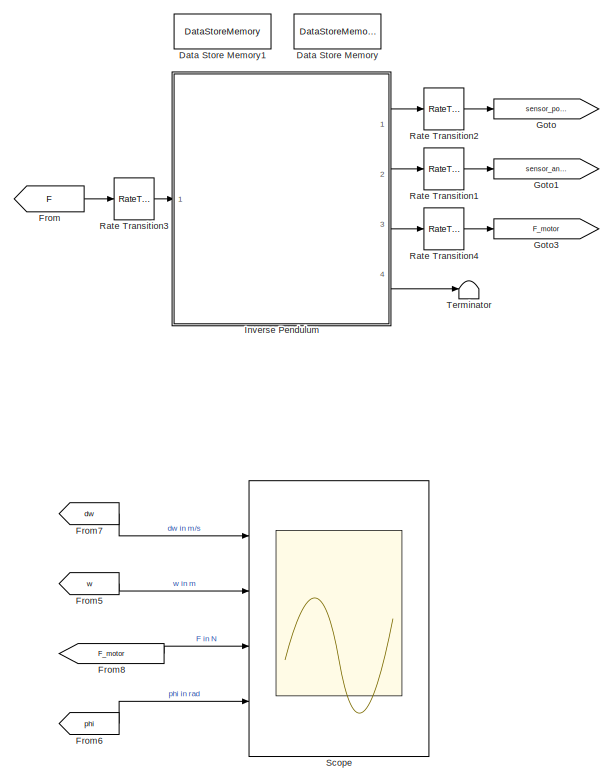
[diagram: root canvas - part 1/2, right side, full height]
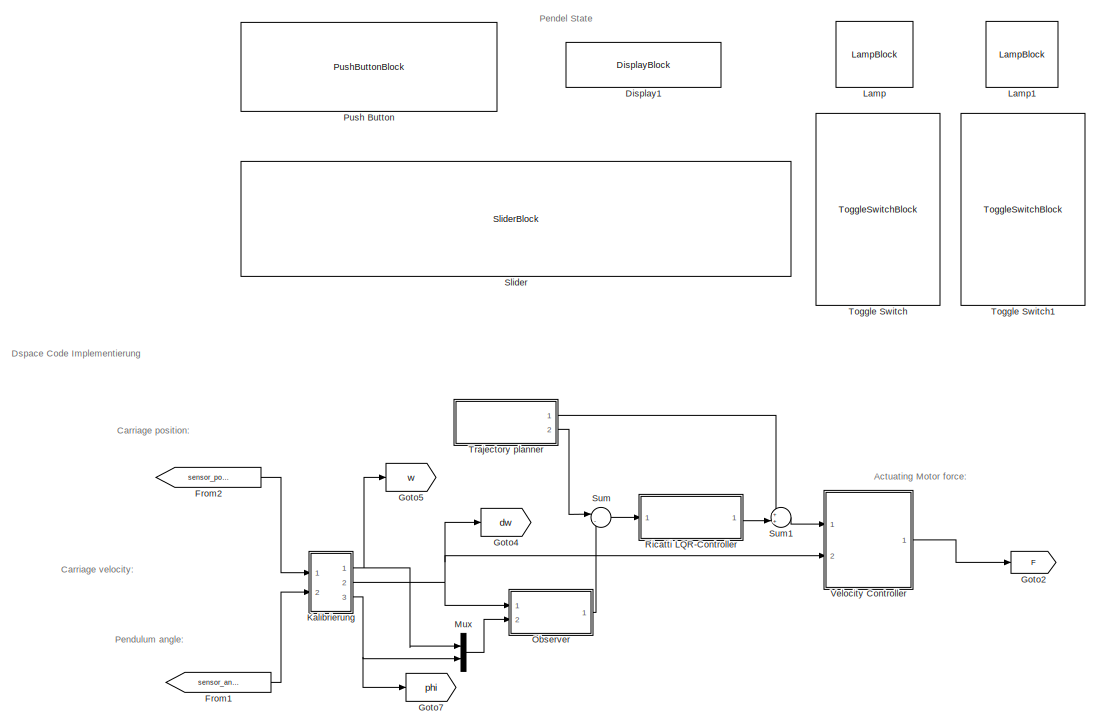
[diagram: root canvas - part 2/2, left side, full height]
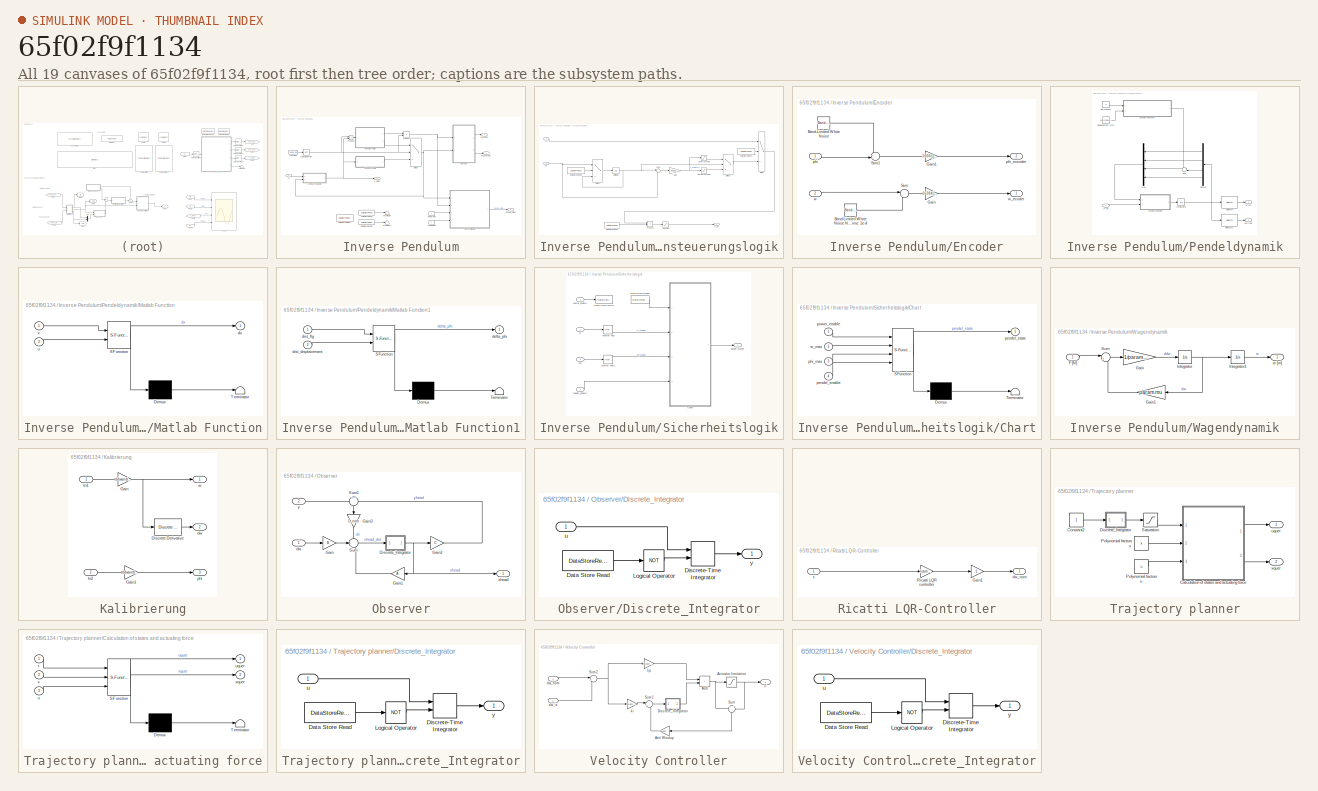
[diagram: thumbnail index - all 19 canvases of the model, root first then tree order]
MODEL slx_65f02f9f1134
KIND model
CONFIG AbsTol = auto
CONFIG EnableMultiTasking = off
CONFIG FixedStep = auto
CONFIG MaxStep = auto
CONFIG MinStep = auto
CONFIG RelTol = 1e-3
CONFIG SampleTimeConstraint = Unconstrained
CONFIG SolverName = VariableStepAuto
CONFIG StartTime = 0.0
CONFIG StopTime = 20
BLOCK [DataStoreMemory] Data Store Memory
  DataStoreName = power_flag
  OutDataTypeStr = boolean
  ReadBeforeWriteMsg = warning
  ShowAdditionalParam = off
  SignalType = real
  WriteAfterReadMsg = warning
  WriteAfterWriteMsg = warning
BLOCK [DataStoreMemory] Data Store Memory1
  DataStoreName = pendel_flag
  OutDataTypeStr = boolean
  ReadBeforeWriteMsg = warning
  ShowAdditionalParam = off
  SignalType = real
  WriteAfterReadMsg = warning
  WriteAfterWriteMsg = warning
BLOCK [DisplayBlock] Display1
  LabelPosition = Hide
BLOCK [From] From
  GotoTag = F
BLOCK [From] From1
  GotoTag = sensor_angle
BLOCK [From] From2
  GotoTag = sensor_position
BLOCK [From] From5
  GotoTag = w
BLOCK [From] From6
  GotoTag = phi
BLOCK [From] From7
  GotoTag = dw
BLOCK [From] From8
  GotoTag = F_motor
BLOCK [Goto] Goto
  GotoTag = sensor_position
BLOCK [Goto] Goto1
  GotoTag = sensor_angle
BLOCK [Goto] Goto2
  GotoTag = F
BLOCK [Goto] Goto3
  GotoTag = F_motor
BLOCK [Goto] Goto4
  GotoTag = dw
BLOCK [Goto] Goto5
  GotoTag = w
BLOCK [Goto] Goto7
  GotoTag = phi
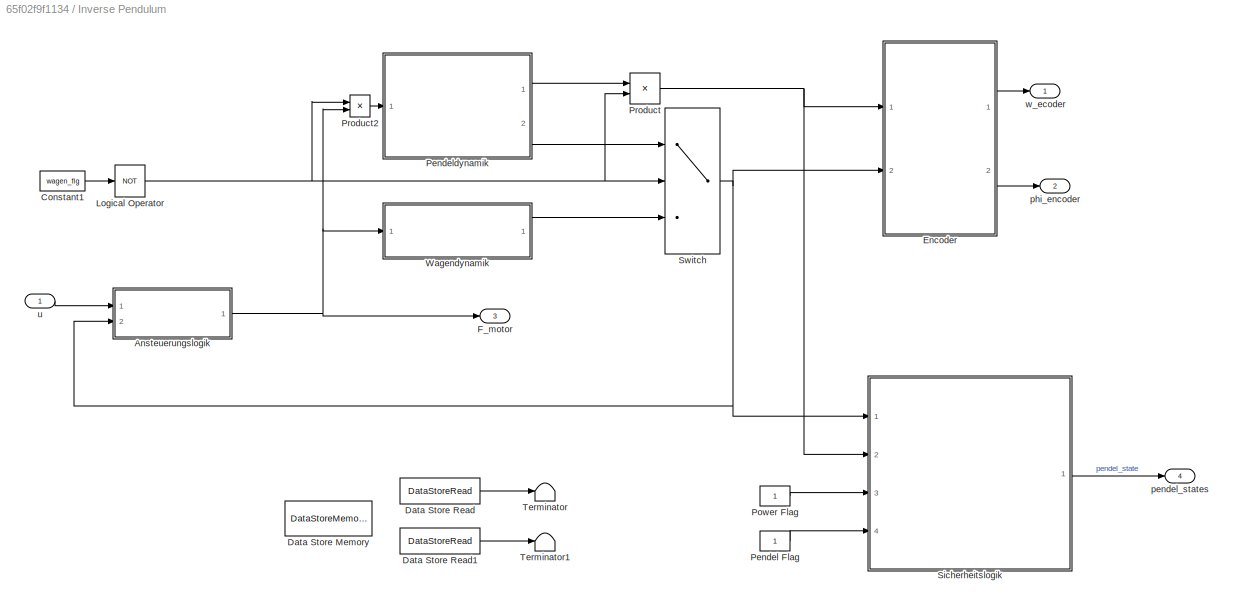
BLOCK [SubSystem] Inverse Pendulum
  Ports = [1, 4]
  RequestExecContextInheritance = off
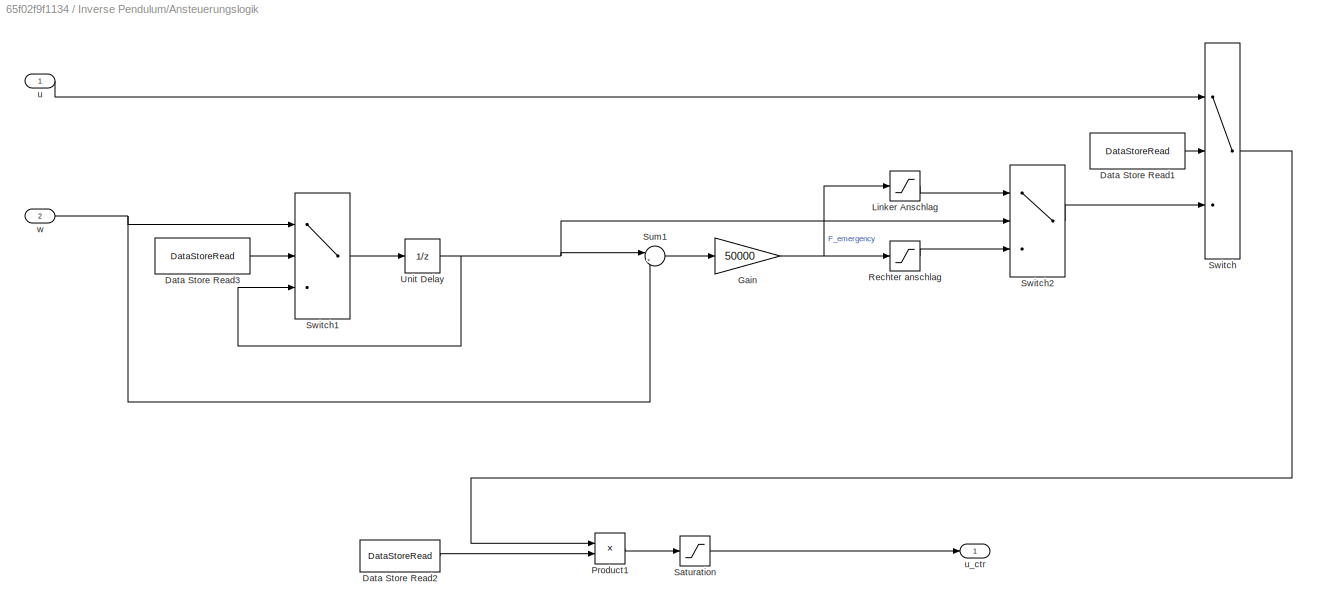
BLOCK [SubSystem] Inverse Pendulum/Ansteuerungslogik
  Ports = [2, 1]
  RequestExecContextInheritance = off
BLOCK [DataStoreRead] Inverse Pendulum/Ansteuerungslogik/Data Store Read1
  DataStoreName = pendel_flag
  Ports = [0, 1]
BLOCK [DataStoreRead] Inverse Pendulum/Ansteuerungslogik/Data Store Read2
  DataStoreName = power_flag
  Ports = [0, 1]
BLOCK [DataStoreRead] Inverse Pendulum/Ansteuerungslogik/Data Store Read3
  DataStoreName = w_update_flag
  Ports = [0, 1]
BLOCK [Gain] Inverse Pendulum/Ansteuerungslogik/Gain
  Gain = 50000
BLOCK [Saturate] Inverse Pendulum/Ansteuerungslogik/Linker Anschlag
  LowerLimit = -inf
  UpperLimit = 10
BLOCK [Product] Inverse Pendulum/Ansteuerungslogik/Product1
  Ports = [2, 1]
BLOCK [Saturate] Inverse Pendulum/Ansteuerungslogik/Rechter anschlag
  LowerLimit = -10
  UpperLimit = inf
BLOCK [Saturate] Inverse Pendulum/Ansteuerungslogik/Saturation
  LowerLimit = -99.83
  UpperLimit = 99.83
BLOCK [Sum] Inverse Pendulum/Ansteuerungslogik/Sum1
  Inputs = |+-
  Ports = [2, 1]
BLOCK [Switch] Inverse Pendulum/Ansteuerungslogik/Switch
  Criteria = u2 > Threshold
  InputSameDT = off
  SaturateOnIntegerOverflow = off
BLOCK [Switch] Inverse Pendulum/Ansteuerungslogik/Switch1
  Criteria = u2 > Threshold
  InputSameDT = off
  SaturateOnIntegerOverflow = off
BLOCK [Switch] Inverse Pendulum/Ansteuerungslogik/Switch2
  Criteria = u2 > Threshold
  InputSameDT = off
  SaturateOnIntegerOverflow = off
BLOCK [UnitDelay] Inverse Pendulum/Ansteuerungslogik/Unit Delay
  HasFrameUpgradeWarning = on
  SampleTime = -1
BLOCK [Inport] Inverse Pendulum/Ansteuerungslogik/u
BLOCK [Outport] Inverse Pendulum/Ansteuerungslogik/u_ctr
  VectorParamsAs1DForOutWhenUnconnected = off
BLOCK [Inport] Inverse Pendulum/Ansteuerungslogik/w
  Port = 2
BLOCK [Constant] Inverse Pendulum/Constant1
  Value = wagen_flg
BLOCK [DataStoreMemory] Inverse Pendulum/Data Store Memory
  DataStoreName = w_update_flag
  OutDataTypeStr = boolean
  ReadBeforeWriteMsg = warning
  ShowAdditionalParam = off
  SignalType = real
  WriteAfterReadMsg = warning
  WriteAfterWriteMsg = warning
BLOCK [DataStoreRead] Inverse Pendulum/Data Store Read
  DataStoreName = power_flag
  Ports = [0, 1]
BLOCK [DataStoreRead] Inverse Pendulum/Data Store Read1
  DataStoreName = pendel_flag
  Ports = [0, 1]
BLOCK [SubSystem] Inverse Pendulum/Encoder
  Ports = [2, 2]
  RequestExecContextInheritance = off
BLOCK [Reference] Inverse Pendulum/Encoder/Band-Limited White Noise  REF=simulink/Sources/Band-Limited
White Noise
  Ports = [0, 1]
  SourceBlock = simulink/Sources/Band-Limited\nWhite Noise
  SourceProductBaseCode = SL
  SourceType = Band-Limited White Noise.
BLOCK [Reference] Inverse Pendulum/Encoder/Band-Limited White Noise Noise Power: 1e-15 -> reuslting in [-1, 1]e-5  deviation Sample Time: 1e-4  REF=simulink/Sources/Band-Limited
White Noise
  Ports = [0, 1]
  SourceBlock = simulink/Sources/Band-Limited\nWhite Noise
  SourceProductBaseCode = SL
  SourceType = Band-Limited White Noise.
BLOCK [Gain] Inverse Pendulum/Encoder/Gain
  Gain = 16384/(0.014325*2*pi)
BLOCK [Gain] Inverse Pendulum/Encoder/Gain1
  Gain = 5000/(2*pi)
BLOCK [Sum] Inverse Pendulum/Encoder/Sum
  Inputs = |++
  Ports = [2, 1]
BLOCK [Sum] Inverse Pendulum/Encoder/Sum1
  Inputs = ++|
  Ports = [2, 1]
BLOCK [Inport] Inverse Pendulum/Encoder/phi
BLOCK [Outport] Inverse Pendulum/Encoder/phi_encoder
  Port = 2
  VectorParamsAs1DForOutWhenUnconnected = off
BLOCK [Inport] Inverse Pendulum/Encoder/w
  Port = 2
BLOCK [Outport] Inverse Pendulum/Encoder/w_ecoder
  VectorParamsAs1DForOutWhenUnconnected = off
BLOCK [Outport] Inverse Pendulum/F_motor
  Port = 3
  VectorParamsAs1DForOutWhenUnconnected = off
BLOCK [Logic] Inverse Pendulum/Logical Operator
  AllPortsSameDT = off
  NameLocation = top
  Operator = NOT
  OutDataTypeStr = boolean
  Ports = [1, 1]
BLOCK [Constant] Inverse Pendulum/Pendel Flag
  OutDataTypeStr = boolean
BLOCK [SubSystem] Inverse Pendulum/Pendeldynamik
  NameLocation = top
  Ports = [1, 2]
  RequestExecContextInheritance = off
BLOCK [Demux] Inverse Pendulum/Pendeldynamik/Demux
  NameLocation = top
  Ports = [1, 4]
BLOCK [Constant] Inverse Pendulum/Pendeldynamik/Displacement [cm]
  Value = 1.89122596153846
BLOCK [Constant] Inverse Pendulum/Pendeldynamik/Disturbance
  OutDataTypeStr = boolean
  Value = 0
BLOCK [Inport] Inverse Pendulum/Pendeldynamik/F [N]
BLOCK [Integrator] Inverse Pendulum/Pendeldynamik/Integrator
  InitialCondition = [0 0 0 0]'
  Ports = [1, 1]
BLOCK [SubSystem] Inverse Pendulum/Pendeldynamik/Matlab Function
  ErrorFcn = Stateflow.Translate.translate
  PermitHierarchicalResolution = ExplicitOnly
  Ports = [2, 1]
  RequestExecContextInheritance = off
  SFBlockType = MATLAB Function
  TreatAsAtomicUnit = on
BLOCK [Demux] Inverse Pendulum/Pendeldynamik/Matlab Function/ Demux 
  Outputs = 1
  Ports = [1, 1]
BLOCK [S-Function] Inverse Pendulum/Pendeldynamik/Matlab Function/ SFunction 
  EnableBusSupport = on
  FunctionName = sf_sfun
  Parameters = param
  PortCounts = [2 2]
  Ports = [2, 2]
  SFcnIsStateOwnerBlock = off
  SFunctionDeploymentMode = off
  Tag = Stateflow S-Function 2
BLOCK [Terminator] Inverse Pendulum/Pendeldynamik/Matlab Function/ Terminator 
BLOCK [Outport] Inverse Pendulum/Pendeldynamik/Matlab Function/dx
  VectorParamsAs1DForOutWhenUnconnected = off
BLOCK [Inport] Inverse Pendulum/Pendeldynamik/Matlab Function/u
  Port = 2
BLOCK [Inport] Inverse Pendulum/Pendeldynamik/Matlab Function/x
BLOCK [SubSystem] Inverse Pendulum/Pendeldynamik/Matlab Function1
  ErrorFcn = Stateflow.Translate.translate
  PermitHierarchicalResolution = ExplicitOnly
  Ports = [2, 1]
  RequestExecContextInheritance = off
  SFBlockType = MATLAB Function
  TreatAsAtomicUnit = on
BLOCK [Demux] Inverse Pendulum/Pendeldynamik/Matlab Function1/ Demux 
  Outputs = 1
  Ports = [1, 1]
BLOCK [S-Function] Inverse Pendulum/Pendeldynamik/Matlab Function1/ SFunction 
  EnableBusSupport = on
  FunctionName = sf_sfun
  Parameters = param
  PortCounts = [2 2]
  Ports = [2, 2]
  SFcnIsStateOwnerBlock = off
  SFunctionDeploymentMode = off
  Tag = Stateflow S-Function 1
BLOCK [Terminator] Inverse Pendulum/Pendeldynamik/Matlab Function1/ Terminator 
BLOCK [Outport] Inverse Pendulum/Pendeldynamik/Matlab Function1/delta_phi
  VectorParamsAs1DForOutWhenUnconnected = off
BLOCK [Inport] Inverse Pendulum/Pendeldynamik/Matlab Function1/dist_displacement
  Port = 2
BLOCK [Inport] Inverse Pendulum/Pendeldynamik/Matlab Function1/dist_flg
BLOCK [Mux] Inverse Pendulum/Pendeldynamik/Mux
  DisplayOption = bar
  NameLocation = top
  Ports = [4, 1]
BLOCK [Selector] Inverse Pendulum/Pendeldynamik/Selector
  IndexOptions = Index vector (dialog)
  Indices = [1]
  InputPortWidth = 4
  OutputSizes = 1
  Ports = [1, 1]
BLOCK [Selector] Inverse Pendulum/Pendeldynamik/Selector1
  IndexOptions = Index vector (dialog)
  Indices = [3]
  InputPortWidth = 4
  OutputSizes = 1
  Ports = [1, 1]
BLOCK [Sum] Inverse Pendulum/Pendeldynamik/Sum
  Inputs = ++|
  NameLocation = top
  Ports = [2, 1]
BLOCK [Outport] Inverse Pendulum/Pendeldynamik/phi [rad]
  VectorParamsAs1DForOutWhenUnconnected = off
BLOCK [Outport] Inverse Pendulum/Pendeldynamik/w [m]
  Port = 2
  VectorParamsAs1DForOutWhenUnconnected = off
BLOCK [Constant] Inverse Pendulum/Power Flag 
  OutDataTypeStr = boolean
BLOCK [Product] Inverse Pendulum/Product
  Ports = [2, 1]
BLOCK [Product] Inverse Pendulum/Product2
  Ports = [2, 1]
BLOCK [SubSystem] Inverse Pendulum/Sicherheitslogik
  Ports = [4, 1]
  RequestExecContextInheritance = off
BLOCK [SubSystem] Inverse Pendulum/Sicherheitslogik/Chart
  ErrorFcn = Stateflow.Translate.translate
  PermitHierarchicalResolution = ExplicitOnly
  Ports = [4, 1]
  RequestExecContextInheritance = off
  SFBlockType = Chart
  TreatAsAtomicUnit = on
BLOCK [Demux] Inverse Pendulum/Sicherheitslogik/Chart/ Demux 
  Outputs = 1
  Ports = [1, 1]
BLOCK [S-Function] Inverse Pendulum/Sicherheitslogik/Chart/ SFunction 
  EnableBusSupport = on
  FunctionName = sf_sfun
  PortCounts = [4 2]
  Ports = [4, 2]
  SFcnIsStateOwnerBlock = off
  SFunctionDeploymentMode = off
  Tag = Stateflow S-Function 3
BLOCK [Terminator] Inverse Pendulum/Sicherheitslogik/Chart/ Terminator 
BLOCK [Inport] Inverse Pendulum/Sicherheitslogik/Chart/pendel_enable
  Port = 4
BLOCK [Outport] Inverse Pendulum/Sicherheitslogik/Chart/pendel_state
  VectorParamsAs1DForOutWhenUnconnected = off
BLOCK [Inport] Inverse Pendulum/Sicherheitslogik/Chart/phi_max
  Port = 3
BLOCK [Inport] Inverse Pendulum/Sicherheitslogik/Chart/power_enable
BLOCK [Inport] Inverse Pendulum/Sicherheitslogik/Chart/w_max
  Port = 2
BLOCK [DataStoreRead] Inverse Pendulum/Sicherheitslogik/Data Store Read1
  DataStoreName = power_flag
  Ports = [0, 1]
BLOCK [DataStoreWrite] Inverse Pendulum/Sicherheitslogik/Data Store Write
  DataStoreName = power_flag
  Ports = [1]
BLOCK [Reference] Inverse Pendulum/Sicherheitslogik/Interval Test  REF=simulink/Logic and Bit
Operations/Interval Test
  Ports = [1, 1]
  SourceBlock = simulink/Logic and Bit\nOperations/Interval Test
  SourceProductBaseCode = SL
  SourceType = Interval Test
BLOCK [Reference] Inverse Pendulum/Sicherheitslogik/Interval Test1  REF=simulink/Logic and Bit
Operations/Interval Test
  Ports = [1, 1]
  SourceBlock = simulink/Logic and Bit\nOperations/Interval Test
  SourceProductBaseCode = SL
  SourceType = Interval Test
BLOCK [Inport] Inverse Pendulum/Sicherheitslogik/pendel_enable
  Port = 4
BLOCK [Outport] Inverse Pendulum/Sicherheitslogik/pendel_states
  VectorParamsAs1DForOutWhenUnconnected = off
BLOCK [Inport] Inverse Pendulum/Sicherheitslogik/phi
  Port = 2
BLOCK [Inport] Inverse Pendulum/Sicherheitslogik/power_enable
  Port = 3
BLOCK [Inport] Inverse Pendulum/Sicherheitslogik/w
BLOCK [Switch] Inverse Pendulum/Switch
  Criteria = u2 > Threshold
  InputSameDT = off
  SaturateOnIntegerOverflow = off
BLOCK [Terminator] Inverse Pendulum/Terminator
BLOCK [Terminator] Inverse Pendulum/Terminator1
BLOCK [SubSystem] Inverse Pendulum/Wagendynamik
  Ports = [1, 1]
  RequestExecContextInheritance = off
BLOCK [Inport] Inverse Pendulum/Wagendynamik/F [N]
BLOCK [Gain] Inverse Pendulum/Wagendynamik/Gain
  Gain = 1/param.mw
BLOCK [Gain] Inverse Pendulum/Wagendynamik/Gain1
  Gain = param.mu
BLOCK [Integrator] Inverse Pendulum/Wagendynamik/Integrator
  Ports = [1, 1]
BLOCK [Integrator] Inverse Pendulum/Wagendynamik/Integrator1
  Ports = [1, 1]
BLOCK [Sum] Inverse Pendulum/Wagendynamik/Sum
  Inputs = |+-
  Ports = [2, 1]
BLOCK [Outport] Inverse Pendulum/Wagendynamik/w [m]
  VectorParamsAs1DForOutWhenUnconnected = off
BLOCK [Outport] Inverse Pendulum/pendel_states
  Port = 4
  VectorParamsAs1DForOutWhenUnconnected = off
BLOCK [Outport] Inverse Pendulum/phi_encoder
  Port = 2
  VectorParamsAs1DForOutWhenUnconnected = off
BLOCK [Inport] Inverse Pendulum/u
  OutDataTypeStr = double
BLOCK [Outport] Inverse Pendulum/w_ecoder
  VectorParamsAs1DForOutWhenUnconnected = off
BLOCK [SubSystem] Kalibrierung
  Ports = [2, 3]
  RequestExecContextInheritance = off
BLOCK [Reference] Kalibrierung/Discrete Derivative  REF=simulink/Discrete/Discrete Derivative
  Ports = [1, 1]
  SourceBlock = simulink/Discrete/Discrete Derivative
  SourceProductBaseCode = SL
  SourceType = Discrete Derivative
BLOCK [Gain] Kalibrierung/Gain
  Gain = ddwandler.w
BLOCK [Gain] Kalibrierung/Gain1
  Gain = ddwandler.phi
BLOCK [Inport] Kalibrierung/In1
BLOCK [Inport] Kalibrierung/In2
  Port = 2
BLOCK [Outport] Kalibrierung/dw
  Port = 2
BLOCK [Outport] Kalibrierung/phi
  Port = 3
BLOCK [Outport] Kalibrierung/w
BLOCK [LampBlock] Lamp
  LabelPosition = Hide
BLOCK [LampBlock] Lamp1
  LabelPosition = Hide
BLOCK [Mux] Mux
  DisplayOption = bar
  Inputs = 2
  Ports = [2, 1]
BLOCK [SubSystem] Observer
  Ports = [2, 1]
  RequestExecContextInheritance = off
BLOCK [SubSystem] Observer/Discrete_Integrator
  Ports = [1, 1]
  RequestExecContextInheritance = off
BLOCK [DataStoreRead] Observer/Discrete_Integrator/Data Store Read
  DataStoreName = power_flag
  Ports = [0, 1]
BLOCK [DiscreteIntegrator] Observer/Discrete_Integrator/Discrete-Time Integrator
  ExternalReset = level
  ICPrevOutput = DiscIntNeverNeededParam
  ICPrevScaledInput = DiscIntNeverNeededParam
  Ports = [2, 1]
  SampleTime = -1
BLOCK [Logic] Observer/Discrete_Integrator/Logical Operator
  AllPortsSameDT = off
  Operator = NOT
  OutDataTypeStr = boolean
  Ports = [1, 1]
BLOCK [Inport] Observer/Discrete_Integrator/u
BLOCK [Outport] Observer/Discrete_Integrator/y
  VectorParamsAs1DForOutWhenUnconnected = off
BLOCK [Gain] Observer/Gain
  Gain = B
  Multiplication = Matrix(K*u)
BLOCK [Gain] Observer/Gain1
  Gain = A
  Multiplication = Matrix(K*u)
  NameLocation = top
BLOCK [Gain] Observer/Gain2
  Gain = C
  Multiplication = Matrix(K*u)
BLOCK [Gain] Observer/Gain3
  Gain = L_nom
  Multiplication = Matrix(K*u)
  NameLocation = left
BLOCK [Sum] Observer/Sum
  Inputs = +++
  Ports = [3, 1]
BLOCK [Sum] Observer/Sum1
  Inputs = +|-
  NameLocation = left
  Ports = [2, 1]
BLOCK [Inport] Observer/dw
BLOCK [Outport] Observer/xhead
BLOCK [Inport] Observer/y
  Port = 2
BLOCK [PushButtonBlock] Push Button
  ButtonText = Disturbe
BLOCK [RateTransition] Rate Transition1
  OutPortSampleTime = ctr.Ts2
BLOCK [RateTransition] Rate Transition2
  OutPortSampleTime = ctr.Ts2
BLOCK [RateTransition] Rate Transition3
BLOCK [RateTransition] Rate Transition4
  OutPortSampleTime = ctr.Ts2
BLOCK [SubSystem] Ricatti LQR-Controller
  Ports = [1, 1]
  RequestExecContextInheritance = off
BLOCK [Gain] Ricatti LQR-Controller/Gain1
  Gain = -1
BLOCK [Gain] Ricatti LQR-Controller/Ricatti LQR controller
  Gain = ricatti_controller
  Multiplication = Matrix(K*u) (u vector)
BLOCK [Outport] Ricatti LQR-Controller/dw_nom
BLOCK [Inport] Ricatti LQR-Controller/x
BLOCK [Scope] Scope
  Floating = off
  NumInputPorts = 4
  Ports = [4]
  ScopeSpecificationString = Simulink.scopes.TimeScopeBlockCfg('CurrentConfiguration', extmgr.ConfigurationSet(extmgr.Configuration('Core','General UI',true),extmgr.Configuration('Core','Source UI',true),extmgr.Configuration('Sources','WiredSimulink',true),extmgr.Configuration('Visuals','Time Domain',true,'SerializedDisplays',{struct('MinYLimReal','-0.31738','MaxYLimReal','0.63901','YLabelReal','','MinYLimMag','0.00000','MaxY...<+3430ch>
BLOCK [SliderBlock] Slider
  ScaleMax = 10
  ScaleMin = -10
BLOCK [Sum] Sum
  Inputs = |-+
  Ports = [2, 1]
BLOCK [Sum] Sum1
  Inputs = ++|
  Ports = [2, 1]
BLOCK [Terminator] Terminator
BLOCK [ToggleSwitchBlock] Toggle Switch
BLOCK [ToggleSwitchBlock] Toggle Switch1
BLOCK [SubSystem] Trajectory planner
  Ports = [0, 2]
  RequestExecContextInheritance = off
BLOCK [SubSystem] Trajectory planner/Calculation of states and actuating force
  ErrorFcn = Stateflow.Translate.translate
  PermitHierarchicalResolution = ExplicitOnly
  Ports = [3, 2]
  RequestExecContextInheritance = off
  SFBlockType = MATLAB Function
  TreatAsAtomicUnit = on
BLOCK [Demux] Trajectory planner/Calculation of states and actuating force/ Demux 
  Outputs = 1
  Ports = [1, 1]
BLOCK [S-Function] Trajectory planner/Calculation of states and actuating force/ SFunction 
  EnableBusSupport = on
  FunctionName = sf_sfun
  PortCounts = [3 3]
  Ports = [3, 3]
  SFcnIsStateOwnerBlock = off
  SFunctionDeploymentMode = off
  Tag = Stateflow S-Function 4
BLOCK [Terminator] Trajectory planner/Calculation of states and actuating force/ Terminator 
BLOCK [Inport] Trajectory planner/Calculation of states and actuating force/t
BLOCK [Inport] Trajectory planner/Calculation of states and actuating force/u
  Port = 3
BLOCK [Outport] Trajectory planner/Calculation of states and actuating force/uquer
BLOCK [Inport] Trajectory planner/Calculation of states and actuating force/x
  Port = 2
BLOCK [Outport] Trajectory planner/Calculation of states and actuating force/xquer
  Port = 2
BLOCK [Constant] Trajectory planner/Constant2
BLOCK [SubSystem] Trajectory planner/Discrete_Integrator
  Ports = [1, 1]
  RequestExecContextInheritance = off
BLOCK [DataStoreRead] Trajectory planner/Discrete_Integrator/Data Store Read
  DataStoreName = power_flag
  Ports = [0, 1]
BLOCK [DiscreteIntegrator] Trajectory planner/Discrete_Integrator/Discrete-Time Integrator
  ExternalReset = level
  ICPrevOutput = DiscIntNeverNeededParam
  ICPrevScaledInput = DiscIntNeverNeededParam
  Ports = [2, 1]
  SampleTime = -1
BLOCK [Logic] Trajectory planner/Discrete_Integrator/Logical Operator
  AllPortsSameDT = off
  Operator = NOT
  OutDataTypeStr = boolean
  Ports = [1, 1]
BLOCK [Inport] Trajectory planner/Discrete_Integrator/u
BLOCK [Outport] Trajectory planner/Discrete_Integrator/y
  VectorParamsAs1DForOutWhenUnconnected = off
BLOCK [Constant] Trajectory planner/Polynomial factors u
  Value = u
BLOCK [Constant] Trajectory planner/Polynomial factors x
  Value = x
BLOCK [Saturate] Trajectory planner/Saturation
  LowerLimit = 0
  UpperLimit = T_end
BLOCK [Outport] Trajectory planner/uquer
BLOCK [Outport] Trajectory planner/xquer
  Port = 2
BLOCK [SubSystem] Velocity Controller
  Ports = [2, 1]
  RequestExecContextInheritance = off
BLOCK [Saturate] Velocity Controller/Actuator limitation
  LowerLimit = -95
  UpperLimit = 95
BLOCK [Sum] Velocity Controller/Add
  IconShape = rectangular
  Ports = [2, 1]
BLOCK [Gain] Velocity Controller/Anti Windup
  Gain = veloctiycontroller.awi
  NameLocation = top
BLOCK [SubSystem] Velocity Controller/Discrete_Integrator
  Ports = [1, 1]
  RequestExecContextInheritance = off
BLOCK [DataStoreRead] Velocity Controller/Discrete_Integrator/Data Store Read
  DataStoreName = power_flag
  Ports = [0, 1]
BLOCK [DiscreteIntegrator] Velocity Controller/Discrete_Integrator/Discrete-Time Integrator
  ExternalReset = level
  ICPrevOutput = DiscIntNeverNeededParam
  ICPrevScaledInput = DiscIntNeverNeededParam
  Ports = [2, 1]
  SampleTime = -1
BLOCK [Logic] Velocity Controller/Discrete_Integrator/Logical Operator
  AllPortsSameDT = off
  Operator = NOT
  OutDataTypeStr = boolean
  Ports = [1, 1]
BLOCK [Inport] Velocity Controller/Discrete_Integrator/u
BLOCK [Outport] Velocity Controller/Discrete_Integrator/y
  VectorParamsAs1DForOutWhenUnconnected = off
BLOCK [Outport] Velocity Controller/F
BLOCK [Sum] Velocity Controller/Sum
  Inputs = +|-
  NameLocation = left
  Ports = [2, 1]
BLOCK [Sum] Velocity Controller/Sum1
  Inputs = |+-
  Ports = [2, 1]
BLOCK [Sum] Velocity Controller/Sum2
  Inputs = |+-
  Ports = [2, 1]
BLOCK [Inport] Velocity Controller/dw_is
  Port = 2
BLOCK [Inport] Velocity Controller/dw_nom
BLOCK [Gain] Velocity Controller/ki
  Gain = veloctiycontroller.ki
BLOCK [Gain] Velocity Controller/kp
  Gain = veloctiycontroller.kp
ANNOTATION (root): Actuating Motor force:
ANNOTATION (root): Carriage position:
ANNOTATION (root): Carriage velocity:
ANNOTATION (root): Pendulum angle:
ANNOTATION (root): Dspace Code Implementierung
ANNOTATION (root): Pendel State
LINE From1:1 -> Kalibrierung:2
LINE From2:1 -> Kalibrierung:1
LINE From5:1 -> Scope:2
LINE From6:1 -> Scope:4
LINE From7:1 -> Scope:1
LINE From8:1 -> Scope:3
LINE From:1 -> Rate Transition3:1
LINE Inverse Pendulum/Ansteuerungslogik/Data Store Read1:1 -> Inverse Pendulum/Ansteuerungslogik/Switch:2
LINE Inverse Pendulum/Ansteuerungslogik/Data Store Read2:1 -> Inverse Pendulum/Ansteuerungslogik/Product1:2
LINE Inverse Pendulum/Ansteuerungslogik/Data Store Read3:1 -> Inverse Pendulum/Ansteuerungslogik/Switch1:2
NET Inverse Pendulum/Ansteuerungslogik/Gain:1 -> Inverse Pendulum/Ansteuerungslogik/Linker Anschlag:1, Inverse Pendulum/Ansteuerungslogik/Rechter anschlag:1
LINE Inverse Pendulum/Ansteuerungslogik/Linker Anschlag:1 -> Inverse Pendulum/Ansteuerungslogik/Switch2:1
LINE Inverse Pendulum/Ansteuerungslogik/Product1:1 -> Inverse Pendulum/Ansteuerungslogik/Saturation:1
LINE Inverse Pendulum/Ansteuerungslogik/Rechter anschlag:1 -> Inverse Pendulum/Ansteuerungslogik/Switch2:3
LINE Inverse Pendulum/Ansteuerungslogik/Saturation:1 -> Inverse Pendulum/Ansteuerungslogik/u_ctr:1
LINE Inverse Pendulum/Ansteuerungslogik/Sum1:1 -> Inverse Pendulum/Ansteuerungslogik/Gain:1
LINE Inverse Pendulum/Ansteuerungslogik/Switch1:1 -> Inverse Pendulum/Ansteuerungslogik/Unit Delay:1
LINE Inverse Pendulum/Ansteuerungslogik/Switch2:1 -> Inverse Pendulum/Ansteuerungslogik/Switch:3
LINE Inverse Pendulum/Ansteuerungslogik/Switch:1 -> Inverse Pendulum/Ansteuerungslogik/Product1:1
NET Inverse Pendulum/Ansteuerungslogik/Unit Delay:1 -> Inverse Pendulum/Ansteuerungslogik/Sum1:1, Inverse Pendulum/Ansteuerungslogik/Switch1:3, Inverse Pendulum/Ansteuerungslogik/Switch2:2
LINE Inverse Pendulum/Ansteuerungslogik/u:1 -> Inverse Pendulum/Ansteuerungslogik/Switch:1
NET Inverse Pendulum/Ansteuerungslogik/w:1 -> Inverse Pendulum/Ansteuerungslogik/Sum1:2, Inverse Pendulum/Ansteuerungslogik/Switch1:1
NET Inverse Pendulum/Ansteuerungslogik:1 -> Inverse Pendulum/F_motor:1, Inverse Pendulum/Product2:2, Inverse Pendulum/Wagendynamik:1
LINE Inverse Pendulum/Constant1:1 -> Inverse Pendulum/Logical Operator:1
LINE Inverse Pendulum/Data Store Read1:1 -> Inverse Pendulum/Terminator1:1
LINE Inverse Pendulum/Data Store Read:1 -> Inverse Pendulum/Terminator:1
LINE Inverse Pendulum/Encoder/Band-Limited White Noise Noise Power: 1e-15 -> reuslting in [-1, 1]e-5  deviation Sample Time: 1e-4:1 -> Inverse Pendulum/Encoder/Sum:2
LINE Inverse Pendulum/Encoder/Band-Limited White Noise:1 -> Inverse Pendulum/Encoder/Sum1:1
LINE Inverse Pendulum/Encoder/Gain1:1 -> Inverse Pendulum/Encoder/phi_encoder:1
LINE Inverse Pendulum/Encoder/Gain:1 -> Inverse Pendulum/Encoder/w_ecoder:1
LINE Inverse Pendulum/Encoder/Sum1:1 -> Inverse Pendulum/Encoder/Gain1:1
LINE Inverse Pendulum/Encoder/Sum:1 -> Inverse Pendulum/Encoder/Gain:1
LINE Inverse Pendulum/Encoder/phi:1 -> Inverse Pendulum/Encoder/Sum1:2
LINE Inverse Pendulum/Encoder/w:1 -> Inverse Pendulum/Encoder/Sum:1
LINE Inverse Pendulum/Encoder:1 -> Inverse Pendulum/w_ecoder:1
LINE Inverse Pendulum/Encoder:2 -> Inverse Pendulum/phi_encoder:1
NET Inverse Pendulum/Logical Operator:1 -> Inverse Pendulum/Product2:1, Inverse Pendulum/Product:2, Inverse Pendulum/Switch:2
LINE Inverse Pendulum/Pendel Flag:1 -> Inverse Pendulum/Sicherheitslogik:4
LINE Inverse Pendulum/Pendeldynamik/Demux:1 -> Inverse Pendulum/Pendeldynamik/Mux:1
LINE Inverse Pendulum/Pendeldynamik/Demux:2 -> Inverse Pendulum/Pendeldynamik/Mux:2
LINE Inverse Pendulum/Pendeldynamik/Demux:3 -> Inverse Pendulum/Pendeldynamik/Sum:2
LINE Inverse Pendulum/Pendeldynamik/Demux:4 -> Inverse Pendulum/Pendeldynamik/Mux:4
LINE Inverse Pendulum/Pendeldynamik/Displacement [cm]:1 -> Inverse Pendulum/Pendeldynamik/Matlab Function1:2
LINE Inverse Pendulum/Pendeldynamik/Disturbance:1 -> Inverse Pendulum/Pendeldynamik/Matlab Function1:1
LINE Inverse Pendulum/Pendeldynamik/F [N]:1 -> Inverse Pendulum/Pendeldynamik/Matlab Function:2
NET Inverse Pendulum/Pendeldynamik/Integrator:1 -> Inverse Pendulum/Pendeldynamik/Demux:1, Inverse Pendulum/Pendeldynamik/Selector1:1, Inverse Pendulum/Pendeldynamik/Selector:1
LINE Inverse Pendulum/Pendeldynamik/Matlab Function1:1 -> Inverse Pendulum/Pendeldynamik/Sum:1
LINE Inverse Pendulum/Pendeldynamik/Matlab Function:1 -> Inverse Pendulum/Pendeldynamik/Integrator:1
LINE Inverse Pendulum/Pendeldynamik/Mux:1 -> Inverse Pendulum/Pendeldynamik/Matlab Function:1
LINE Inverse Pendulum/Pendeldynamik/Selector1:1 -> Inverse Pendulum/Pendeldynamik/phi [rad]:1
LINE Inverse Pendulum/Pendeldynamik/Selector:1 -> Inverse Pendulum/Pendeldynamik/w [m]:1
LINE Inverse Pendulum/Pendeldynamik/Sum:1 -> Inverse Pendulum/Pendeldynamik/Mux:3
LINE Inverse Pendulum/Pendeldynamik:1 -> Inverse Pendulum/Product:1
LINE Inverse Pendulum/Pendeldynamik:2 -> Inverse Pendulum/Switch:1
LINE Inverse Pendulum/Power Flag :1 -> Inverse Pendulum/Sicherheitslogik:3
LINE Inverse Pendulum/Product2:1 -> Inverse Pendulum/Pendeldynamik:1
NET Inverse Pendulum/Product:1 -> Inverse Pendulum/Encoder:1, Inverse Pendulum/Sicherheitslogik:2
LINE Inverse Pendulum/Sicherheitslogik/Chart:1 -> Inverse Pendulum/Sicherheitslogik/pendel_states:1
LINE Inverse Pendulum/Sicherheitslogik/Data Store Read1:1 -> Inverse Pendulum/Sicherheitslogik/Chart:1
LINE Inverse Pendulum/Sicherheitslogik/Interval Test1:1 -> Inverse Pendulum/Sicherheitslogik/Chart:3
LINE Inverse Pendulum/Sicherheitslogik/Interval Test:1 -> Inverse Pendulum/Sicherheitslogik/Chart:2
LINE Inverse Pendulum/Sicherheitslogik/pendel_enable:1 -> Inverse Pendulum/Sicherheitslogik/Chart:4
LINE Inverse Pendulum/Sicherheitslogik/phi:1 -> Inverse Pendulum/Sicherheitslogik/Interval Test1:1
LINE Inverse Pendulum/Sicherheitslogik/power_enable:1 -> Inverse Pendulum/Sicherheitslogik/Data Store Write:1
LINE Inverse Pendulum/Sicherheitslogik/w:1 -> Inverse Pendulum/Sicherheitslogik/Interval Test:1
LINE Inverse Pendulum/Sicherheitslogik:1 -> Inverse Pendulum/pendel_states:1
NET Inverse Pendulum/Switch:1 -> Inverse Pendulum/Ansteuerungslogik:2, Inverse Pendulum/Encoder:2, Inverse Pendulum/Sicherheitslogik:1
LINE Inverse Pendulum/Wagendynamik/F [N]:1 -> Inverse Pendulum/Wagendynamik/Sum:1
LINE Inverse Pendulum/Wagendynamik/Gain1:1 -> Inverse Pendulum/Wagendynamik/Sum:2
LINE Inverse Pendulum/Wagendynamik/Gain:1 -> Inverse Pendulum/Wagendynamik/Integrator:1
LINE Inverse Pendulum/Wagendynamik/Integrator1:1 -> Inverse Pendulum/Wagendynamik/w [m]:1
NET Inverse Pendulum/Wagendynamik/Integrator:1 -> Inverse Pendulum/Wagendynamik/Gain1:1, Inverse Pendulum/Wagendynamik/Integrator1:1
LINE Inverse Pendulum/Wagendynamik/Sum:1 -> Inverse Pendulum/Wagendynamik/Gain:1
LINE Inverse Pendulum/Wagendynamik:1 -> Inverse Pendulum/Switch:3
LINE Inverse Pendulum/u:1 -> Inverse Pendulum/Ansteuerungslogik:1
LINE Inverse Pendulum:1 -> Rate Transition2:1
LINE Inverse Pendulum:2 -> Rate Transition1:1
LINE Inverse Pendulum:3 -> Rate Transition4:1
LINE Inverse Pendulum:4 -> Terminator:1
LINE Kalibrierung/Discrete Derivative:1 -> Kalibrierung/dw:1
LINE Kalibrierung/Gain1:1 -> Kalibrierung/phi:1
NET Kalibrierung/Gain:1 -> Kalibrierung/Discrete Derivative:1, Kalibrierung/w:1
LINE Kalibrierung/In1:1 -> Kalibrierung/Gain:1
LINE Kalibrierung/In2:1 -> Kalibrierung/Gain1:1
NET Kalibrierung:1 -> Goto5:1, Mux:1
NET Kalibrierung:2 -> Goto4:1, Observer:1, Velocity Controller:2
NET Kalibrierung:3 -> Goto7:1, Mux:2
LINE Mux:1 -> Observer:2
LINE Observer/Discrete_Integrator/Data Store Read:1 -> Observer/Discrete_Integrator/Logical Operator:1
LINE Observer/Discrete_Integrator/Discrete-Time Integrator:1 -> Observer/Discrete_Integrator/y:1
LINE Observer/Discrete_Integrator/Logical Operator:1 -> Observer/Discrete_Integrator/Discrete-Time Integrator:2
LINE Observer/Discrete_Integrator/u:1 -> Observer/Discrete_Integrator/Discrete-Time Integrator:1
NET Observer/Discrete_Integrator:1 -> Observer/Gain1:1, Observer/Gain2:1, Observer/xhead:1
LINE Observer/Gain1:1 -> Observer/Sum:3
LINE Observer/Gain2:1 -> Observer/Sum1:2
LINE Observer/Gain3:1 -> Observer/Sum:1
LINE Observer/Gain:1 -> Observer/Sum:2
LINE Observer/Sum1:1 -> Observer/Gain3:1
LINE Observer/Sum:1 -> Observer/Discrete_Integrator:1
LINE Observer/dw:1 -> Observer/Gain:1
LINE Observer/y:1 -> Observer/Sum1:1
LINE Observer:1 -> Sum:2
LINE Rate Transition1:1 -> Goto1:1
LINE Rate Transition2:1 -> Goto:1
LINE Rate Transition3:1 -> Inverse Pendulum:1
LINE Rate Transition4:1 -> Goto3:1
LINE Ricatti LQR-Controller/Gain1:1 -> Ricatti LQR-Controller/dw_nom:1
LINE Ricatti LQR-Controller/Ricatti LQR controller:1 -> Ricatti LQR-Controller/Gain1:1
LINE Ricatti LQR-Controller/x:1 -> Ricatti LQR-Controller/Ricatti LQR controller:1
LINE Ricatti LQR-Controller:1 -> Sum1:2
LINE Sum1:1 -> Velocity Controller:1
LINE Sum:1 -> Ricatti LQR-Controller:1
LINE Trajectory planner/Calculation of states and actuating force:1 -> Trajectory planner/uquer:1
LINE Trajectory planner/Calculation of states and actuating force:2 -> Trajectory planner/xquer:1
LINE Trajectory planner/Constant2:1 -> Trajectory planner/Discrete_Integrator:1
LINE Trajectory planner/Discrete_Integrator/Data Store Read:1 -> Trajectory planner/Discrete_Integrator/Logical Operator:1
LINE Trajectory planner/Discrete_Integrator/Discrete-Time Integrator:1 -> Trajectory planner/Discrete_Integrator/y:1
LINE Trajectory planner/Discrete_Integrator/Logical Operator:1 -> Trajectory planner/Discrete_Integrator/Discrete-Time Integrator:2
LINE Trajectory planner/Discrete_Integrator/u:1 -> Trajectory planner/Discrete_Integrator/Discrete-Time Integrator:1
LINE Trajectory planner/Discrete_Integrator:1 -> Trajectory planner/Saturation:1
LINE Trajectory planner/Polynomial factors u:1 -> Trajectory planner/Calculation of states and actuating force:3
LINE Trajectory planner/Polynomial factors x:1 -> Trajectory planner/Calculation of states and actuating force:2
LINE Trajectory planner/Saturation:1 -> Trajectory planner/Calculation of states and actuating force:1
LINE Trajectory planner:1 -> Sum1:1
LINE Trajectory planner:2 -> Sum:1
NET Velocity Controller/Actuator limitation:1 -> Velocity Controller/F:1, Velocity Controller/Sum:2
NET Velocity Controller/Add:1 -> Velocity Controller/Actuator limitation:1, Velocity Controller/Sum:1
LINE Velocity Controller/Anti Windup:1 -> Velocity Controller/Sum1:2
LINE Velocity Controller/Discrete_Integrator/Data Store Read:1 -> Velocity Controller/Discrete_Integrator/Logical Operator:1
LINE Velocity Controller/Discrete_Integrator/Discrete-Time Integrator:1 -> Velocity Controller/Discrete_Integrator/y:1
LINE Velocity Controller/Discrete_Integrator/Logical Operator:1 -> Velocity Controller/Discrete_Integrator/Discrete-Time Integrator:2
LINE Velocity Controller/Discrete_Integrator/u:1 -> Velocity Controller/Discrete_Integrator/Discrete-Time Integrator:1
LINE Velocity Controller/Discrete_Integrator:1 -> Velocity Controller/Add:2
LINE Velocity Controller/Sum1:1 -> Velocity Controller/Discrete_Integrator:1
NET Velocity Controller/Sum2:1 -> Velocity Controller/ki:1, Velocity Controller/kp:1
LINE Velocity Controller/Sum:1 -> Velocity Controller/Anti Windup:1
LINE Velocity Controller/dw_is:1 -> Velocity Controller/Sum2:2
LINE Velocity Controller/dw_nom:1 -> Velocity Controller/Sum2:1
LINE Velocity Controller/ki:1 -> Velocity Controller/Sum1:1
LINE Velocity Controller/kp:1 -> Velocity Controller/Add:1
LINE Velocity Controller:1 -> Goto2:1
note: NET lines group one-source signal fan-out (src -> all destinations, sorted); 1:1 wires keep LINE
CHART Inverse Pendulum/Pendeldynamik/Matlab Function1 states=1 transitions=1
  STATE_LABEL 'eML_blk_kernel()'
  STATE_LABEL 'SCRIPT:\nfunction delta_phi = fcn(dist_flg,dist_displacement,param)\n\ndelta_phi = dist_flg*asin(dist_displacement/100/(param.l*2));'
CHART Inverse Pendulum/Pendeldynamik/Matlab Function states=1 transitions=1
  STATE_LABEL 'eML_blk_kernel()'
  STATE_LABEL 'SCRIPT:\nfunction dx = fcn(x,u,param)\n%State #####\n% x1 = w    ... position\n% x2 = dw   ... velocity\n% x3 = phi  ... pendulum angle\n% x4 = dphi ... pendulum speed\n\n%Input #####\n% u = F  ... carriage force\n\nFg = u - param.mu*x(2); % Driving force\nsphi = sin(x(3));  \ncphi = cos(x(3));\n\n%Parameter:\nmpl = param.mp*param.l;\nM = param.mc + param.mp;\nJ  = 4/3*mpl*param.l; \nMM  = M - (mpl*cphi)^2/J;\nJJ = J...<+245ch>'
CHART Inverse Pendulum/Sicherheitslogik/Chart states=6 transitions=16
  STATE_LABEL 'start/\nentry:\npendel_flag=false;\npendel_state=0;\nw_update_flag=true;\n'
  STATE_LABEL 'on/\nentry:\npendel_flag=true;\npendel_state=1;\nw_update_flag=true;'
  STATE_LABEL 'intermediate_start/\n% Verhindert ein\n% Springen des\n% Wagens wen etwas\n% nicht stimmt'
  STATE_LABEL 'emergency_off_power/\n% Power Fehler\nentry:\npendel_flag=false;\npendel_state=2;\nw_update_flag=true;'
  STATE_LABEL 'emergency_off_w_position/\n% Postionsfehler\nentry:\npendel_flag=false;\npendel_state=3;\nw_update_flag=false;'
  STATE_LABEL 'emergency_off_p_angle/\n% Winkelfehler\nentry:\npendel_flag=false;\npendel_state=4;\nw_update_flag=true;'
CHART Trajectory planner/Calculation of states and actuating force states=1 transitions=1
  STATE_LABEL 'eML_blk_kernel()'
  STATE_LABEL 'SCRIPT:\nfunction [uquer, xquer] = fcn(t, x, u)\n  xquer = [x(1)*t^7+x(2)*t^6+x(3)*t^5+x(4)*t^4+x(5)*t^3+x(6)*t^2;...\n  x(7)*t^6+x(8)*t^5+x(9)*t^4+x(10)*t^3;...\n  x(11)*t^5+x(12)*t^4+x(13)*t^3+x(14)*t^2];\n  uquer = u(1)*t^6 +u(2)*t^5+u(3)*t^4+u(4)*t^3+u(5)*t^2+u(6)*t;\nend\n'
CHART  states=0 transitions=0
CHART  states=0 transitions=0
CHART  states=0 transitions=0
CHART  states=0 transitions=0
